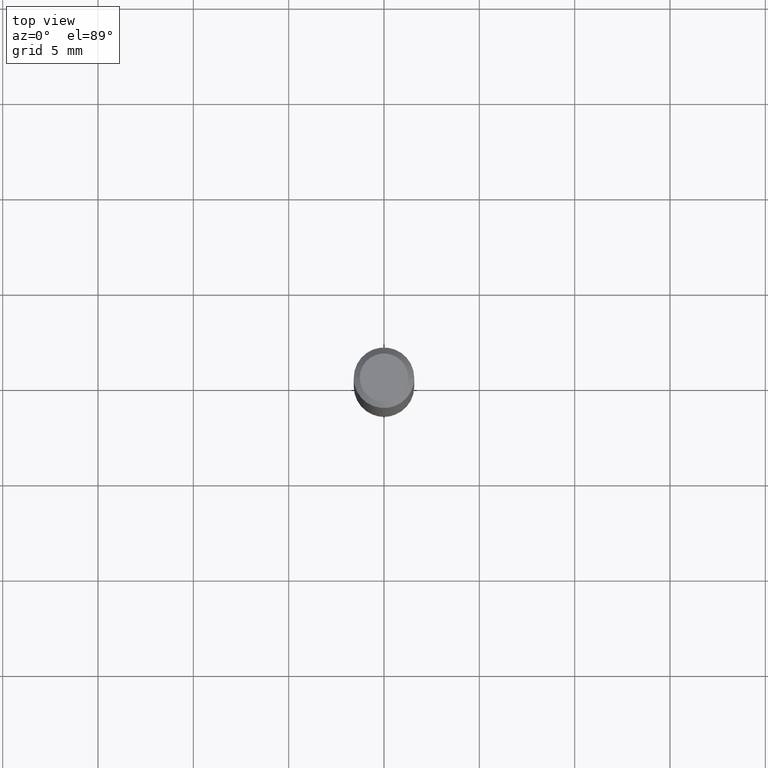
[diagram: clean part render]
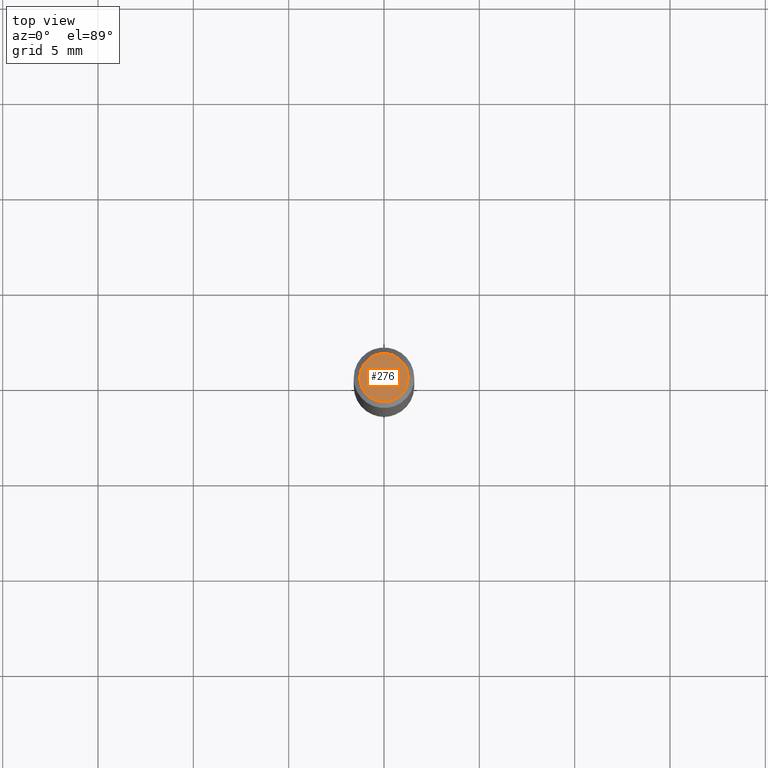
[diagram: same view with one face highlighted and labeled with its STEP entity id]
A machine part, top view. The second image highlights one B-rep face of the part: STEP entity #276.
In plain terms, the highlighted planar face has unit normal (0, -0, -1).
Its self-contained STEP definition (entity closure, byte-faithful):
#17 = VERTEX_POINT ( 'NONE', #44 ) ;
#27 = CARTESIAN_POINT ( 'NONE',  ( 0.04999999999999999584, -4.077247707424184212E-16, -1.592040838888913461E-18 ) ) ;
#32 = EDGE_CURVE ( 'NONE', #17, #143, #374, .T. ) ;
#44 = CARTESIAN_POINT ( 'NONE',  ( -0.04999999999999999584, 3.709698922520826725E-16, -1.592040838894077649E-18 ) ) ;
#48 = DIRECTION ( 'NONE',  ( 1.000000000000000000, -6.982962677686265922E-15, 4.875957971899673662E-29 ) ) ;
#61 = CARTESIAN_POINT ( 'NONE',  ( 3.893286209682126177E-47, -5.558580879666067980E-33, -1.592040838891559689E-18 ) ) ;
#62 = PLANE ( 'NONE',  #487 ) ;
#107 = CARTESIAN_POINT ( 'NONE',  ( 1.946643104841063088E-47, -2.779290439833033990E-33, -7.960204194457798443E-19 ) ) ;
#143 = VERTEX_POINT ( 'NONE', #27 ) ;
#184 = ORIENTED_EDGE ( 'NONE', *, *, #252, .T. ) ;
#198 = DIRECTION ( 'NONE',  ( -2.445468806185136597E-29, 3.491481338843145583E-15, 1.000000000000000000 ) ) ;
#217 = DIRECTION ( 'NONE',  ( -2.445468806185136597E-29, 3.491481338843145583E-15, 1.000000000000000000 ) ) ;
#234 = EDGE_LOOP ( 'NONE', ( #334, #184 ) ) ;
#252 = EDGE_CURVE ( 'NONE', #143, #17, #479, .T. ) ;
#259 = DIRECTION ( 'NONE',  ( 2.438088387897960049E-29, -3.491481338843145188E-15, -1.000000000000000000 ) ) ;
#269 = CARTESIAN_POINT ( 'NONE',  ( 3.893286209682126177E-47, -5.558580879666067980E-33, -1.592040838891559689E-18 ) ) ;
#276 = ADVANCED_FACE ( 'NONE', ( #444 ), #62, .F. ) ;
#334 = ORIENTED_EDGE ( 'NONE', *, *, #32, .T. ) ;
#364 = DIRECTION ( 'NONE',  ( 1.000000000000000000, -6.982962677686265922E-15, 4.875957971899673662E-29 ) ) ;
#365 = AXIS2_PLACEMENT_3D ( 'NONE', #269, #198, #48 ) ;
#374 = CIRCLE ( 'NONE', #365, 0.04999999999999999584 ) ;
#399 = AXIS2_PLACEMENT_3D ( 'NONE', #61, #217, #364 ) ;
#408 = DIRECTION ( 'NONE',  ( -1.000000000000000000, 6.982962677686265922E-15, -4.876176775795935793E-29 ) ) ;
#444 = FACE_OUTER_BOUND ( 'NONE', #234, .T. ) ;
#479 = CIRCLE ( 'NONE', #399, 0.04999999999999999584 ) ;
#487 = AXIS2_PLACEMENT_3D ( 'NONE', #107, #259, #408 ) ;